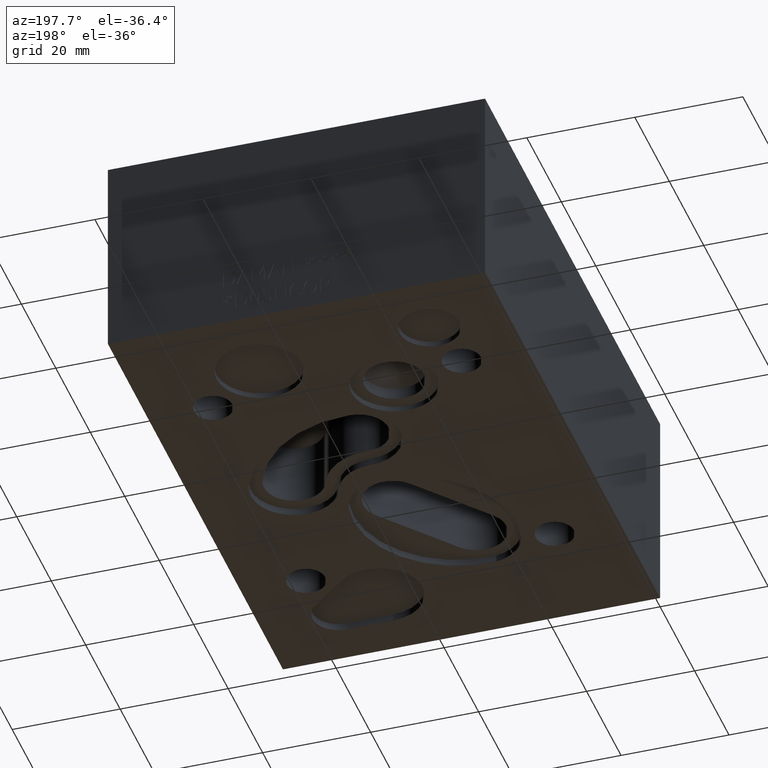
[diagram: clean part render]
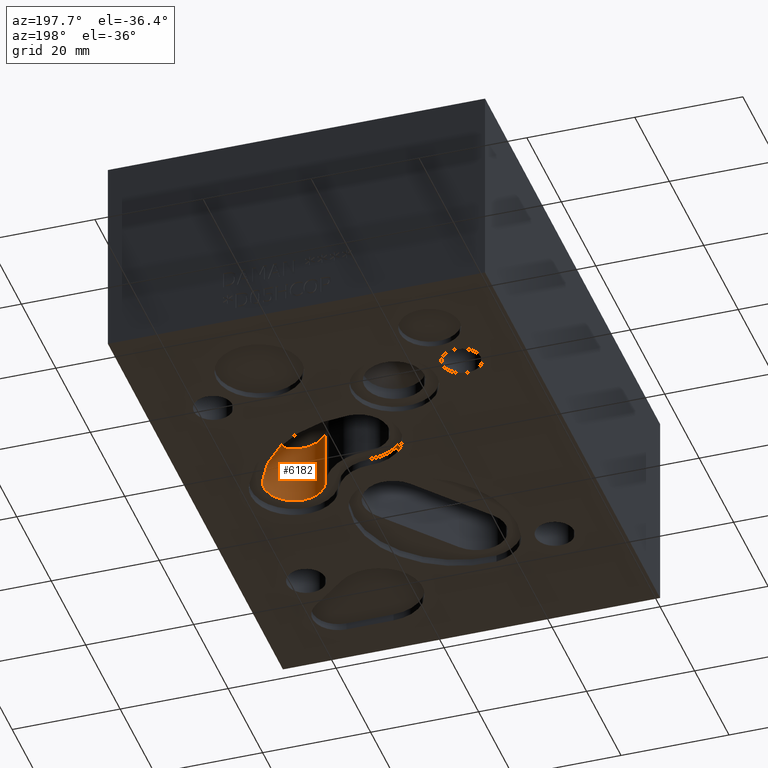
[diagram: same view with one face highlighted and labeled with its STEP entity id]
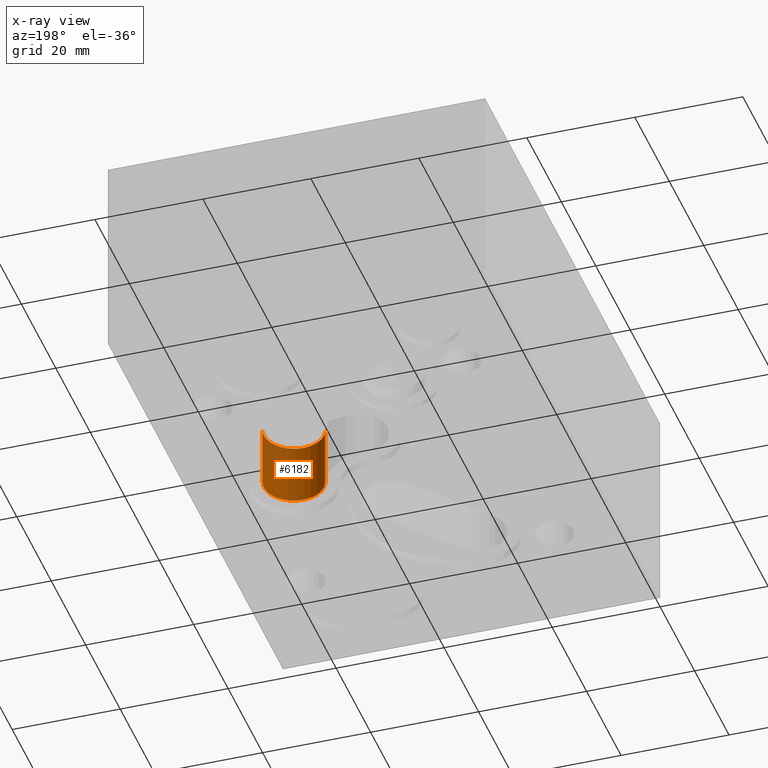
[diagram: x-ray of the same camera — body ghosted, the highlighted face saturated]
A machine part, auxiliary view. The second image highlights one B-rep face of the part: STEP entity #6182.
The next image is the same camera in x-ray: the body ghosted, the highlighted face saturated — about 6% of this face is hidden behind the body in this view.
In plain terms, the highlighted cylindrical surface (edge-blend (fillet) strip) has radius 5.5615 mm, axis along (0, 0, 1).
Its self-contained STEP definition (entity closure, byte-faithful):
#56=CIRCLE('',#6488,0.218957408387097);
#60=CIRCLE('',#6494,0.218957408387097);
#89=CYLINDRICAL_SURFACE('',#6493,0.218957408387097);
#521=FACE_OUTER_BOUND('',#883,.T.);
#883=EDGE_LOOP('',(#5532,#5533,#5534,#5535));
#1557=LINE('',#10808,#2223);
#1559=LINE('',#10814,#2225);
#2223=VECTOR('',#7705,0.448);
#2225=VECTOR('',#7711,0.448);
#2973=VERTEX_POINT('',#10798);
#2975=VERTEX_POINT('',#10801);
#2977=VERTEX_POINT('',#10807);
#2979=VERTEX_POINT('',#10813);
#3841=EDGE_CURVE('',#2975,#2973,#56,.T.);
#3844=EDGE_CURVE('',#2975,#2977,#1557,.T.);
#3847=EDGE_CURVE('',#2973,#2979,#1559,.T.);
#3848=EDGE_CURVE('',#2977,#2979,#60,.T.);
#5532=ORIENTED_EDGE('',*,*,#3841,.T.);
#5533=ORIENTED_EDGE('',*,*,#3847,.T.);
#5534=ORIENTED_EDGE('',*,*,#3848,.F.);
#5535=ORIENTED_EDGE('',*,*,#3844,.F.);
#6182=ADVANCED_FACE('',(#521),#89,.F.);
#6488=AXIS2_PLACEMENT_3D('',#10802,#7697,#7698);
#6493=AXIS2_PLACEMENT_3D('',#10812,#7709,#7710);
#6494=AXIS2_PLACEMENT_3D('',#10815,#7712,#7713);
#7697=DIRECTION('center_axis',(0.,0.,-1.));
#7698=DIRECTION('ref_axis',(0.938834361502246,0.344369048642106,0.));
#7705=DIRECTION('',(0.,0.,1.));
#7709=DIRECTION('center_axis',(0.,0.,1.));
#7710=DIRECTION('ref_axis',(0.341474920489467,-0.939890886580305,0.));
#7711=DIRECTION('',(0.,0.,1.));
#7712=DIRECTION('center_axis',(0.,0.,-1.));
#7713=DIRECTION('ref_axis',(0.938834361502246,0.344369048642106,0.));
#10798=CARTESIAN_POINT('',(1.82598414194808,1.92431924848215,0.052));
#10801=CARTESIAN_POINT('',(2.23757433387041,2.07385546600235,0.052));
#10802=CARTESIAN_POINT('Origin',(2.03200959517113,1.99845331158294,0.052));
#10807=CARTESIAN_POINT('',(2.23757433387041,2.07385546600235,0.5));
#10808=CARTESIAN_POINT('',(2.23757433387041,2.07385546600235,0.052));
#10812=CARTESIAN_POINT('Origin',(2.03200959517113,1.99845331158294,0.));
#10813=CARTESIAN_POINT('',(1.82598414194808,1.92431924848215,0.5));
#10814=CARTESIAN_POINT('',(1.82598414194808,1.92431924848215,0.052));
#10815=CARTESIAN_POINT('Origin',(2.03200959517113,1.99845331158294,0.5));